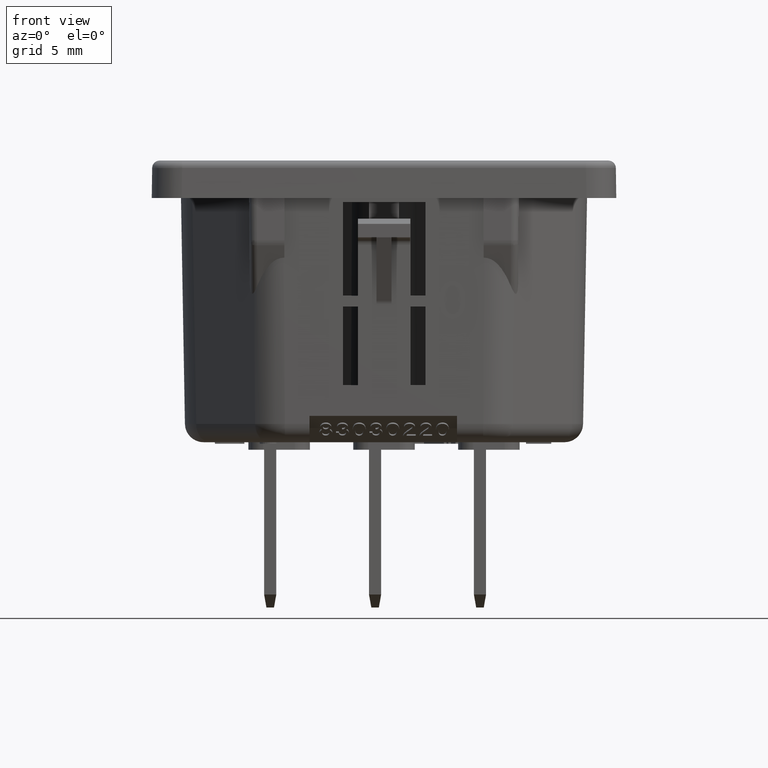
[diagram: clean part render]
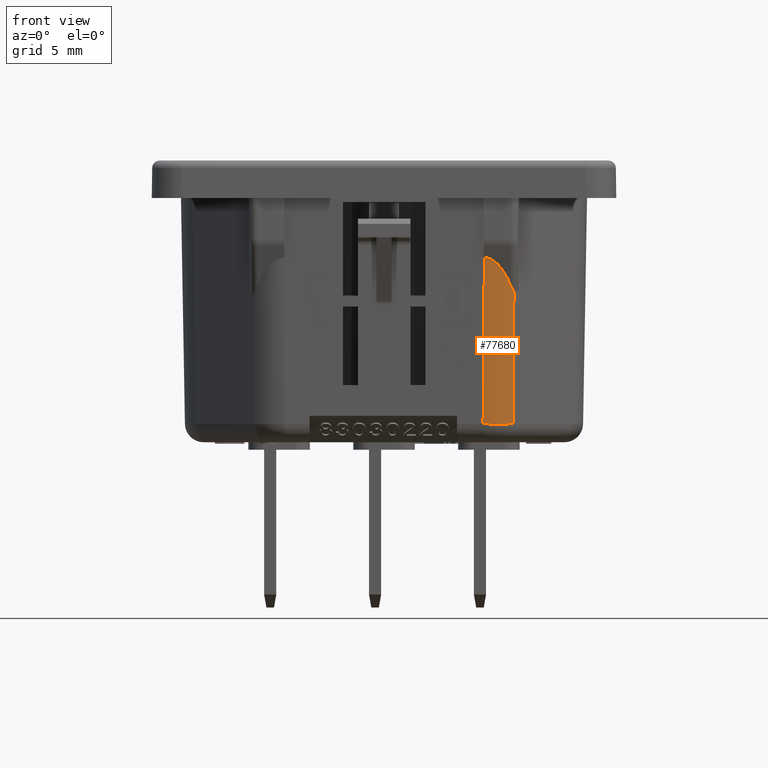
[diagram: same view with one face highlighted and labeled with its STEP entity id]
A machine part, front view. The second image highlights one B-rep face of the part: STEP entity #77680.
In plain terms, the highlighted cylindrical surface (partial cylindrical patch) has radius 2.75 mm, axis along (0.0075, -0.0175, 0.9998).
Its self-contained STEP definition (entity closure, byte-faithful):
#28580=CARTESIAN_POINT('',(22.002126726395,11.9065444919534,
8.43036855385634));
#28590=VERTEX_POINT('',#28580);
#62040=CARTESIAN_POINT('',(20.0076510206848,11.9065444929835,
9.28726294167057));
#62050=VERTEX_POINT('',#62040);
#62080=CARTESIAN_POINT('',(22.002126726395,11.9065444919534,
8.43036855385634));
#62090=CARTESIAN_POINT('',(21.7460903882889,11.9037563351048,
8.70010385715412));
#62100=CARTESIAN_POINT('',(21.4462796310251,11.902021564481,
8.92829767875135));
#62110=CARTESIAN_POINT('',(21.1111186568031,11.901431966317,
9.1060722649757));
#62120=CARTESIAN_POINT('',(20.7514559379452,11.9020215648586,
9.22681749597304));
#62130=CARTESIAN_POINT('',(20.3795538815312,11.9037563358334,
9.28721427420878));
#62140=CARTESIAN_POINT('',(20.0076510206848,11.9065444929835,
9.28726294167056));
#62150=B_SPLINE_CURVE_WITH_KNOTS('',6,(#62080,#62090,#62100,#62110,
#62120,#62130,#62140),.UNSPECIFIED.,.F.,.F.,(7,7),(0.,1.),.UNSPECIFIED.)
;
#62160=EDGE_CURVE('',#28590,#62050,#62150,.T.);
#66910=CARTESIAN_POINT('',(21.9124761924005,-0.0479941177025297,
8.22170131609372));
#66920=DIRECTION('',(0.00749793555627765,0.999819589538164,
0.0174519150275998));
#66930=VECTOR('',#66920,1.);
#66940=LINE('',#66910,#66930);
#66950=CARTESIAN_POINT('',(22.0680044618531,20.6910759047718,
8.58370311278871));
#66960=VERTEX_POINT('',#66950);
#66970=EDGE_CURVE('',#28590,#66960,#66940,.T.);
#77200=CARTESIAN_POINT('',(19.9180004866996,0.,6.3290145422099));
#77210=DIRECTION('',(0.00749793555627765,0.999819589538164,
0.0174519150275998));
#77220=DIRECTION('',(0.,0.0174524056132187,-0.999847695170775));
#77230=AXIS2_PLACEMENT_3D('',#77200,#77210,#77220);
#77240=CYLINDRICAL_SURFACE('',#77230,2.75);
#77250=CARTESIAN_POINT('',(21.6592981536438,0.,0.578567241360952));
#77260=DIRECTION('',(0.00820029755639015,0.939661027645424,
0.342008637675034));
#77270=DIRECTION('',(0.,0.342020137419914,-0.939692622935427));
#77280=AXIS2_PLACEMENT_3D('',#77250,#77260,#77270);
#77290=CYLINDRICAL_SURFACE('',#77280,0.5);
#77300=CARTESIAN_POINT('',(22.0680044618514,20.6910759047698,
8.58370311278972));
#77310=CARTESIAN_POINT('',(22.0462983147351,20.7234021725012,
8.60739633789433));
#77320=CARTESIAN_POINT('',(22.0256849177643,20.758009657344,
8.62920285220159));
#77330=CARTESIAN_POINT('',(22.0058634772444,20.7937934219708,
8.64965774190691));
#77340=CARTESIAN_POINT('',(21.9860340350021,20.8295916321545,
8.67012088905179));
#77350=CARTESIAN_POINT('',(21.9669898166581,20.8666453505964,
8.689233324602));
#77360=CARTESIAN_POINT('',(21.9486684625218,20.9042582507764,
8.70720909567154));
#77370=CARTESIAN_POINT('',(21.9303284220585,20.9419095131292,
8.72520320060081));
#77380=CARTESIAN_POINT('',(21.9125962561092,20.9803734848834,
8.7421720483137));
#77390=CARTESIAN_POINT('',(21.895383042961,21.0194122816207,
8.75830319337567));
#77400=CARTESIAN_POINT('',(21.8781694729362,21.0584518877381,
8.77443467287998));
#77410=CARTESIAN_POINT('',(21.8614743916714,21.0980763771587,
8.78972777779938));
#77420=CARTESIAN_POINT('',(21.8452599856168,21.1381052950356,
8.80429711211236));
#77430=B_SPLINE_CURVE_WITH_KNOTS('',3,(#77300,#77310,#77320,#77330,
#77340,#77350,#77360,#77370,#77380,#77390,#77400,#77410,#77420),
.UNSPECIFIED.,.F.,.F.,(4,3,3,3,4),(0.,0.13704712046333,0.274140918181999
,0.410945134891175,0.547762921413786),.UNSPECIFIED.);
#77440=SURFACE_CURVE('',#77430,(#77290,#77240),.CURVE_3D.);
#77450=CARTESIAN_POINT('',(21.8452599856168,21.1381052950356,
8.80429711211237));
#77460=VERTEX_POINT('',#77450);
#77470=EDGE_CURVE('',#66960,#77460,#77440,.T.);
#77480=ORIENTED_EDGE('',*,*,#77470,.T.);
#77490=ORIENTED_EDGE('',*,*,#66970,.T.);
#77500=ORIENTED_EDGE('',*,*,#62160,.F.);
#77510=CARTESIAN_POINT('',(19.9180004866996,-0.0479941154363516,
9.07859570392953));
#77520=DIRECTION('',(0.00749793555627765,0.999819589538164,
0.0174519150275998));
#77530=VECTOR('',#77520,1.);
#77540=LINE('',#77510,#77530);
#77550=CARTESIAN_POINT('',(20.0908208561522,22.9969079850167,
9.48084594735818));
#77560=VERTEX_POINT('',#77550);
#77570=EDGE_CURVE('',#62050,#77560,#77540,.T.);
#77580=ORIENTED_EDGE('',*,*,#77570,.F.);
#77590=CARTESIAN_POINT('',(20.030936310233,15.0595384398513,
6.59187975105078));
#77600=DIRECTION('',(1.08873510964884E-9,0.342020137411524,
-0.939692622938481));
#77610=DIRECTION('',(0.00792994489260536,0.939663076643357,
0.342009383448964));
#77620=AXIS2_PLACEMENT_3D('',#77590,#77600,#77610);
#77630=ELLIPSE('',#77620,8.44700966725868,2.75);
#77640=EDGE_CURVE('',#77560,#77460,#77630,.T.);
#77650=ORIENTED_EDGE('',*,*,#77640,.F.);
#77660=EDGE_LOOP('',(#77650,#77580,#77500,#77490,#77480));
#77670=FACE_OUTER_BOUND('',#77660,.T.);
#77680=ADVANCED_FACE('',(#77670),#77240,.T.);